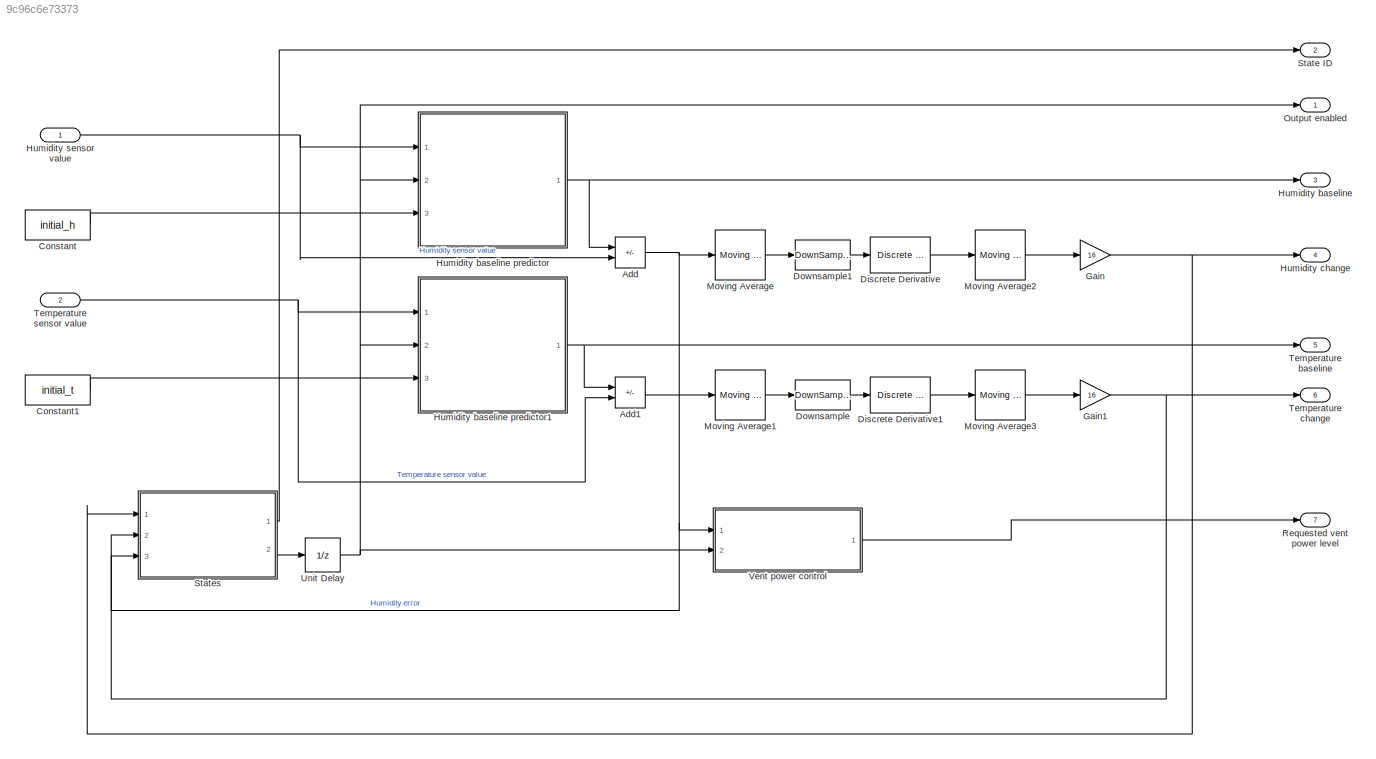
MODEL slx_9c96c6e73373
KIND model
CONFIG AbsTol = auto
CONFIG EnableMultiTasking = off
CONFIG FixedStep = 1
CONFIG MaxStep = auto
CONFIG MinStep = auto
CONFIG RelTol = 1e-3
CONFIG SampleTimeConstraint = Unconstrained
CONFIG Solver = FixedStepDiscrete
CONFIG SolverName = FixedStepDiscrete
CONFIG StartTime = 0.0
CONFIG StopTime = 10.0
WORKSPACE source: mxarray member
WORKSPACE initial_h: Simulink.Parameter (value not decoded)
WORKSPACE initial_t: Simulink.Parameter (value not decoded)
BLOCK [Sum] Add
  IconShape = rectangular
  Inputs = -+
  Ports = [2, 1]
BLOCK [Sum] Add1
  IconShape = rectangular
  Inputs = -+
  Ports = [2, 1]
BLOCK [Constant] Constant
  Value = initial_h
BLOCK [Constant] Constant1
  Value = initial_t
BLOCK [Reference] Discrete Derivative  REF=simulink/Discrete/Discrete Derivative
  Ports = [1, 1]
  SourceBlock = simulink/Discrete/Discrete Derivative
  SourceProductBaseCode = SL
  SourceType = Discrete Derivative
BLOCK [Reference] Discrete Derivative1  REF=simulink/Discrete/Discrete Derivative
  Ports = [1, 1]
  SourceBlock = simulink/Discrete/Discrete Derivative
  SourceProductBaseCode = SL
  SourceType = Discrete Derivative
BLOCK [DownSample] Downsample
  InputProcessing = Elements as channels (sample based)
  N = 16
  ic = initial_t
  phase = 15
BLOCK [DownSample] Downsample1
  InputProcessing = Elements as channels (sample based)
  N = 16
  ic = initial_h
  phase = 15
BLOCK [Gain] Gain
  Gain = 16
BLOCK [Gain] Gain1
  Gain = 16
BLOCK [Outport] Humidity baseline
  Port = 3
BLOCK [ModelReference] Humidity baseline predictor
  ModelNameDialog = baseline_predictor.slx
  ModelReferenceVersion = 1.4
  Ports = [3, 1]
BLOCK [ModelReference] Humidity baseline predictor1
  ModelNameDialog = baseline_predictor.slx
  ModelReferenceVersion = 1.4
  Ports = [3, 1]
BLOCK [Outport] Humidity change
  Port = 4
BLOCK [Inport] Humidity sensor value
BLOCK [Reference] Moving Average  REF=dspstat3/Moving
Average
  Ports = [1, 1]
  SourceBlock = dspstat3/Moving\nAverage
  SourceProductBaseCode = DS
  SourceType = dsp.simulink.MovingAverage
BLOCK [Reference] Moving Average1  REF=dspstat3/Moving
Average
  Ports = [1, 1]
  SourceBlock = dspstat3/Moving\nAverage
  SourceProductBaseCode = DS
  SourceType = dsp.simulink.MovingAverage
BLOCK [Reference] Moving Average2  REF=dspstat3/Moving
Average
  Ports = [1, 1]
  SourceBlock = dspstat3/Moving\nAverage
  SourceProductBaseCode = DS
  SourceType = dsp.simulink.MovingAverage
BLOCK [Reference] Moving Average3  REF=dspstat3/Moving
Average
  Ports = [1, 1]
  SourceBlock = dspstat3/Moving\nAverage
  SourceProductBaseCode = DS
  SourceType = dsp.simulink.MovingAverage
BLOCK [Outport] Output enabled
BLOCK [Outport] Requested vent power level
  Port = 7
BLOCK [Outport] State ID
  Port = 2
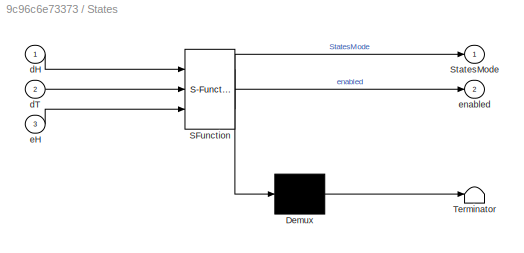
BLOCK [SubSystem] States
  ErrorFcn = Stateflow.Translate.translate
  PermitHierarchicalResolution = ExplicitOnly
  Ports = [3, 2]
  RequestExecContextInheritance = off
  SFBlockType = Chart
  TreatAsAtomicUnit = on
BLOCK [Demux] States/ Demux 
  Outputs = 1
  Ports = [1, 1]
BLOCK [S-Function] States/ SFunction 
  EnableBusSupport = on
  FunctionName = sf_sfun
  PortCounts = [3 3]
  Ports = [3, 3]
  SFcnIsStateOwnerBlock = off
  SFunctionDeploymentMode = off
  Tag = Stateflow S-Function 3
BLOCK [Terminator] States/ Terminator 
BLOCK [Outport] States/StatesMode
BLOCK [Inport] States/dH
BLOCK [Inport] States/dT
  Port = 2
BLOCK [Inport] States/eH
  Port = 3
BLOCK [Outport] States/enabled
  Port = 2
BLOCK [Outport] Temperature baseline
  Port = 5
BLOCK [Outport] Temperature change
  Port = 6
BLOCK [Inport] Temperature sensor value
  Port = 2
BLOCK [UnitDelay] Unit Delay
  HasFrameUpgradeWarning = on
  SampleTime = -1
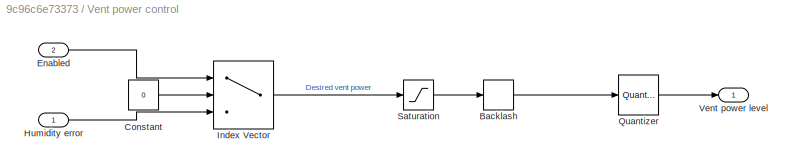
BLOCK [SubSystem] Vent power control
  Ports = [2, 1]
  RequestExecContextInheritance = off
BLOCK [Backlash] Vent power control/Backlash
  BacklashWidth = 2
BLOCK [Constant] Vent power control/Constant
  Value = 0
BLOCK [Inport] Vent power control/Enabled
  Port = 2
BLOCK [Inport] Vent power control/Humidity error
BLOCK [MultiPortSwitch] Vent power control/Index Vector
  DataPortOrder = Zero-based contiguous
  InputSameDT = off
  Inputs = 2
  Ports = [3, 1]
  SaturateOnIntegerOverflow = off
  zeroidx = on
BLOCK [Quantizer] Vent power control/Quantizer
  LinearizeAsGain = off
  QuantizationInterval = 30/4
BLOCK [Saturate] Vent power control/Saturation
  LowerLimit = 0
  UpperLimit = 30
BLOCK [Outport] Vent power control/Vent power level
LINE Add1:1 -> Moving Average1:1
NET Add:1 -> Moving Average:1, States:3, Vent power control:1
LINE Constant1:1 -> Humidity baseline predictor1:3
LINE Constant:1 -> Humidity baseline predictor:3
LINE Discrete Derivative1:1 -> Moving Average3:1
LINE Discrete Derivative:1 -> Moving Average2:1
LINE Downsample1:1 -> Discrete Derivative:1
LINE Downsample:1 -> Discrete Derivative1:1
NET Gain1:1 -> States:2, Temperature change:1
NET Gain:1 -> Humidity change:1, States:1
NET Humidity baseline predictor1:1 -> Add1:1, Temperature baseline:1
NET Humidity baseline predictor:1 -> Add:1, Humidity baseline:1
NET Humidity sensor value:1 -> Add:2, Humidity baseline predictor:1
LINE Moving Average1:1 -> Downsample:1
LINE Moving Average2:1 -> Gain:1
LINE Moving Average3:1 -> Gain1:1
LINE Moving Average:1 -> Downsample1:1
LINE States:1 -> State ID:1
LINE States:2 -> Unit Delay:1
NET Temperature sensor value:1 -> Add1:2, Humidity baseline predictor1:1
NET Unit Delay:1 -> Humidity baseline predictor1:2, Humidity baseline predictor:2, Output enabled:1, Vent power control:2
LINE Vent power control/Backlash:1 -> Vent power control/Quantizer:1
LINE Vent power control/Constant:1 -> Vent power control/Index Vector:2
LINE Vent power control/Enabled:1 -> Vent power control/Index Vector:1
LINE Vent power control/Humidity error:1 -> Vent power control/Index Vector:3
LINE Vent power control/Index Vector:1 -> Vent power control/Saturation:1
LINE Vent power control/Quantizer:1 -> Vent power control/Vent power level:1
LINE Vent power control/Saturation:1 -> Vent power control/Backlash:1
LINE Vent power control:1 -> Requested vent power level:1
note: NET lines group one-source signal fan-out (src -> all destinations, sorted); 1:1 wires keep LINE
CHART States states=4 transitions=6
  STATE_LABEL 'Stopping\nentry: enabled=0'
  STATE_LABEL 'Detected\nentry: enabled=1'
  STATE_LABEL 'Stable\nentry: enabled=1'
  STATE_LABEL 'OFF\nentry: enabled=0'
CHART  states=0 transitions=0
